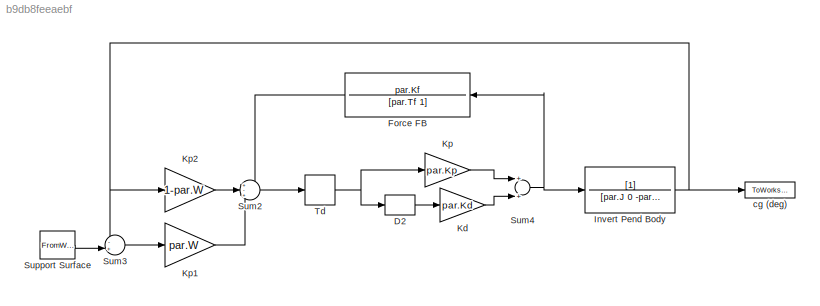
MODEL slx_b9db8feeaebf
KIND model
CONFIG AbsTol = 1e-3
CONFIG FixedStep = 1/sr
CONFIG MaxStep = 0.01
CONFIG MinStep = auto
CONFIG RelTol = 1e-3
CONFIG SampleTimeConstraint = Unconstrained
CONFIG Solver = ode5
CONFIG SolverMode = SingleTasking
CONFIG SolverName = ode5
CONFIG StartTime = 0
CONFIG StopTime = sim_time-1/sr
BLOCK [Derivative] D2
BLOCK [TransferFcn] Force FB
  Denominator = [par.Tf 1]
  Numerator = par.Kf
BLOCK [TransferFcn] Invert Pend Body
  Denominator = [par.J 0 -par.mgh]
BLOCK [Gain] Kd
  Gain = par.Kd
BLOCK [Gain] Kp
  Gain = par.Kp
BLOCK [Gain] Kp1
  Gain = par.W
BLOCK [Gain] Kp2
  Gain = 1-par.W
BLOCK [Sum] Sum2
  IconShape = round
  Inputs = +-+
  Ports = [3, 1]
BLOCK [Sum] Sum3
  IconShape = round
  Inputs = -+|
  Ports = [2, 1]
BLOCK [Sum] Sum4
  Ports = [2, 1]
BLOCK [FromWorkspace] Support Surface
  SampleTime = 0
  VariableName = [t,stim]
BLOCK [TransportDelay] Td
  DelayTime = par.dt
  Ports = [1, 1]
BLOCK [ToWorkspace] cg (deg)
  MaxDataPoints = inf
  Ports = [1]
  SampleTime = -1
  VariableName = resp
LINE D2:1 -> Kd:1
LINE Force FB:1 -> Sum2:1
NET Invert Pend Body:1 -> Kp2:1, Sum3:1, cg (deg):1
LINE Kd:1 -> Sum4:2
LINE Kp1:1 -> Sum2:3
LINE Kp2:1 -> Sum2:2
LINE Kp:1 -> Sum4:1
LINE Sum2:1 -> Td:1
LINE Sum3:1 -> Kp1:1
NET Sum4:1 -> Force FB:1, Invert Pend Body:1
LINE Support Surface:1 -> Sum3:2
NET Td:1 -> D2:1, Kp:1
note: NET lines group one-source signal fan-out (src -> all destinations, sorted); 1:1 wires keep LINE
